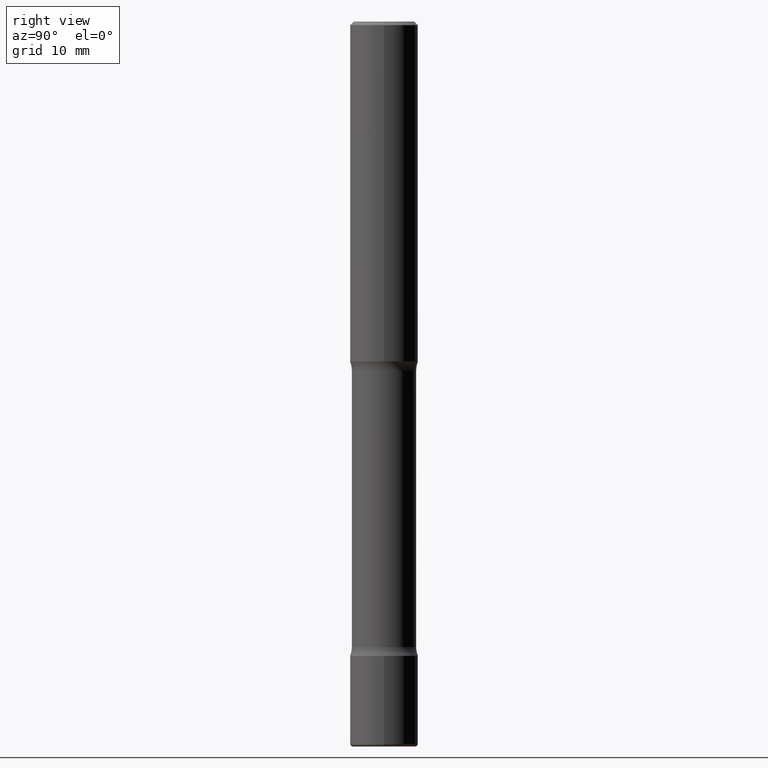
[diagram: clean part render]
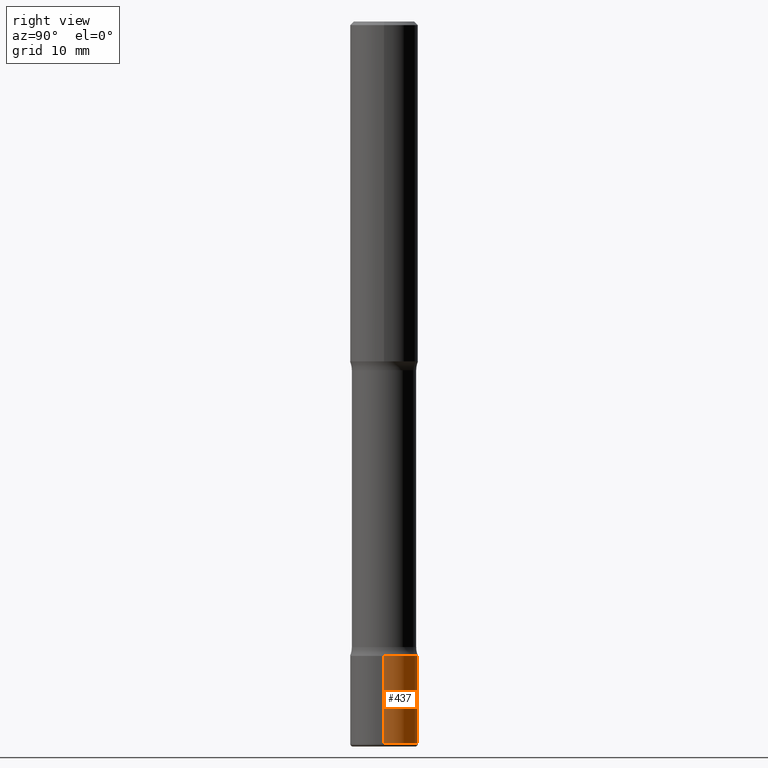
[diagram: same view with one face highlighted and labeled with its STEP entity id]
A machine part, right view. The second image highlights one B-rep face of the part: STEP entity #437.
In plain terms, the highlighted cylindrical surface (edge-blend (fillet) strip) has radius 4.7625 mm, axis along (-0, 0, 1).
Its self-contained STEP definition (entity closure, byte-faithful):
#34 = CIRCLE ( 'NONE', #116, 0.1875000000000001110 ) ;
#35 = LINE ( 'NONE', #301, #83 ) ;
#51 = DIRECTION ( 'NONE',  ( 1.000000000000000000, -6.982962677686269077E-15, 0.000000000000000000 ) ) ;
#62 = DIRECTION ( 'NONE',  ( -2.445468806185136597E-29, 3.491481338843145583E-15, 1.000000000000000000 ) ) ;
#78 = DIRECTION ( 'NONE',  ( -2.445468806185136877E-29, 3.491481338843145188E-15, 1.000000000000000000 ) ) ;
#83 = VECTOR ( 'NONE', #78, 39.37007874015748143 ) ;
#88 = ORIENTED_EDGE ( 'NONE', *, *, #100, .T. ) ;
#100 = EDGE_CURVE ( 'NONE', #231, #436, #408, .T. ) ;
#109 = CARTESIAN_POINT ( 'NONE',  ( 0.000000000000000000, 0.000000000000000000, 0.000000000000000000 ) ) ;
#116 = AXIS2_PLACEMENT_3D ( 'NONE', #175, #452, #51 ) ;
#123 = EDGE_CURVE ( 'NONE', #194, #436, #34, .T. ) ;
#131 = CARTESIAN_POINT ( 'NONE',  ( 9.745193192647770190E-29, -1.391355313528993565E-14, -3.985000000000000320 ) ) ;
#138 = CARTESIAN_POINT ( 'NONE',  ( 0.1875000000000001110, -1.352949018801718751E-14, -3.500000000000000444 ) ) ;
#149 = FACE_OUTER_BOUND ( 'NONE', #536, .T. ) ;
#170 = CARTESIAN_POINT ( 'NONE',  ( -0.1874999999999999722, -1.258128550573974937E-14, -3.985000000000000320 ) ) ;
#175 = CARTESIAN_POINT ( 'NONE',  ( 8.559140821647978089E-29, -1.222018468595101092E-14, -3.500000000000000444 ) ) ;
#194 = VERTEX_POINT ( 'NONE', #138 ) ;
#198 = CIRCLE ( 'NONE', #298, 0.1875000000000000555 ) ;
#209 = ORIENTED_EDGE ( 'NONE', *, *, #123, .F. ) ;
#222 = EDGE_CURVE ( 'NONE', #302, #231, #198, .T. ) ;
#230 = DIRECTION ( 'NONE',  ( 1.000000000000000000, -6.982962677686266711E-15, 4.876176775795935793E-29 ) ) ;
#231 = VERTEX_POINT ( 'NONE', #170 ) ;
#234 = CARTESIAN_POINT ( 'NONE',  ( 0.1874999999999999722, -1.522285863735611381E-14, -3.985000000000000320 ) ) ;
#253 = AXIS2_PLACEMENT_3D ( 'NONE', #109, #62, #230 ) ;
#282 = ORIENTED_EDGE ( 'NONE', *, *, #470, .F. ) ;
#298 = AXIS2_PLACEMENT_3D ( 'NONE', #131, #360, #449 ) ;
#301 = CARTESIAN_POINT ( 'NONE',  ( 0.1875000000000000833, -1.309305502066175600E-15, 9.142831454617383816E-30 ) ) ;
#302 = VERTEX_POINT ( 'NONE', #234 ) ;
#316 = CARTESIAN_POINT ( 'NONE',  ( -0.1875000000000000833, 1.332267629550188440E-15, -9.223003294227952194E-30 ) ) ;
#360 = DIRECTION ( 'NONE',  ( -2.445468806185136597E-29, 3.491481338843145583E-15, 1.000000000000000000 ) ) ;
#361 = VECTOR ( 'NONE', #455, 39.37007874015748143 ) ;
#378 = CARTESIAN_POINT ( 'NONE',  ( -0.1875000000000001110, -1.173460128107028622E-14, -3.500000000000000444 ) ) ;
#408 = LINE ( 'NONE', #316, #361 ) ;
#420 = ORIENTED_EDGE ( 'NONE', *, *, #222, .T. ) ;
#436 = VERTEX_POINT ( 'NONE', #378 ) ;
#437 = ADVANCED_FACE ( 'NONE', ( #149 ), #500, .T. ) ;
#449 = DIRECTION ( 'NONE',  ( 1.000000000000000000, -6.982962677686270655E-15, 0.000000000000000000 ) ) ;
#452 = DIRECTION ( 'NONE',  ( -2.445468806185136597E-29, 3.491481338843145583E-15, 1.000000000000000000 ) ) ;
#455 = DIRECTION ( 'NONE',  ( -2.445468806185136877E-29, 3.491481338843145188E-15, 1.000000000000000000 ) ) ;
#470 = EDGE_CURVE ( 'NONE', #302, #194, #35, .T. ) ;
#500 = CYLINDRICAL_SURFACE ( 'NONE', #253, 0.1875000000000000833 ) ;
#536 = EDGE_LOOP ( 'NONE', ( #420, #88, #209, #282 ) ) ;